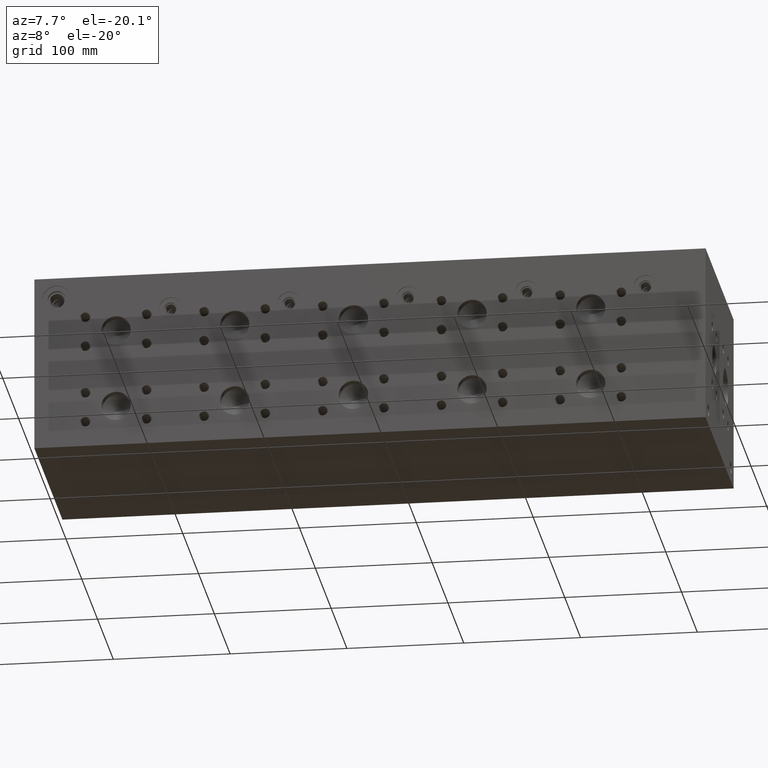
[diagram: clean part render]
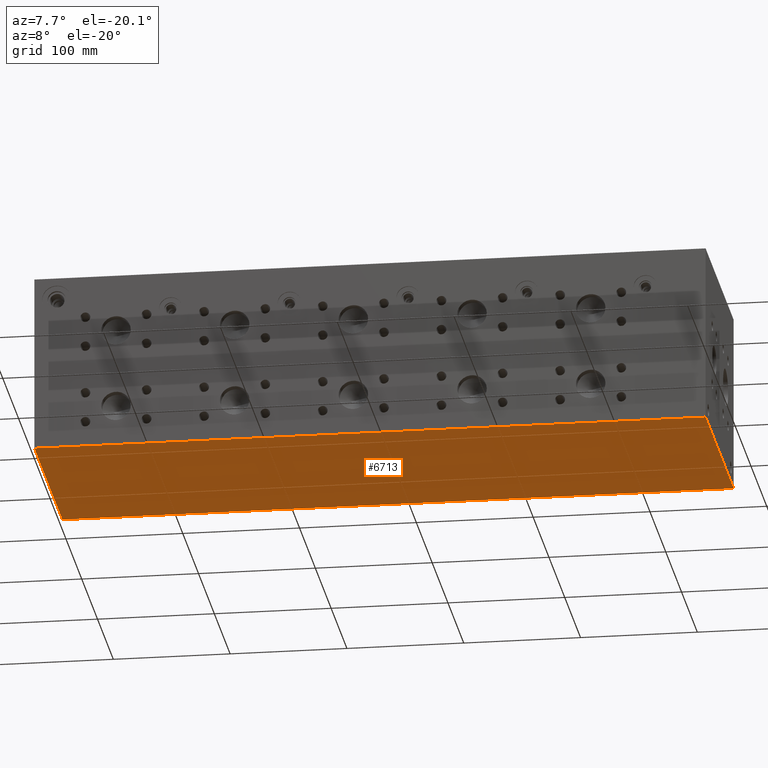
[diagram: same view with one face highlighted and labeled with its STEP entity id]
A machine part, auxiliary view. The second image highlights one B-rep face of the part: STEP entity #6713.
In plain terms, the highlighted planar face has unit normal (0, 0, 1).
Its self-contained STEP definition (entity closure, byte-faithful):
#6353=CARTESIAN_POINT('',(0.0,177.80000000000001,0.0));
#6354=VERTEX_POINT('',#6353);
#6361=CARTESIAN_POINT('',(0.0,0.0,0.0));
#6362=VERTEX_POINT('',#6361);
#6363=CARTESIAN_POINT('',(0.0,177.80000000000001,0.0));
#6364=DIRECTION('',(0.0,-1.0,0.0));
#6365=VECTOR('',#6364,177.80000000000001);
#6366=LINE('',#6363,#6365);
#6367=EDGE_CURVE('',#6354,#6362,#6366,.T.);
#6427=CARTESIAN_POINT('',(574.67499999999995,177.80000000000001,0.0));
#6428=VERTEX_POINT('',#6427);
#6435=CARTESIAN_POINT('',(574.67499999999995,177.80000000000001,0.0));
#6436=DIRECTION('',(-1.0,0.0,0.0));
#6437=VECTOR('',#6436,574.67499999999995);
#6438=LINE('',#6435,#6437);
#6439=EDGE_CURVE('',#6428,#6354,#6438,.T.);
#6458=CARTESIAN_POINT('',(574.67499999999995,0.0,0.0));
#6459=VERTEX_POINT('',#6458);
#6466=CARTESIAN_POINT('',(574.67499999999995,0.0,0.0));
#6467=DIRECTION('',(0.0,1.0,0.0));
#6468=VECTOR('',#6467,177.80000000000001);
#6469=LINE('',#6466,#6468);
#6470=EDGE_CURVE('',#6459,#6428,#6469,.T.);
#6524=CARTESIAN_POINT('',(0.0,0.0,0.0));
#6525=DIRECTION('',(1.0,0.0,0.0));
#6526=VECTOR('',#6525,574.67499999999995);
#6527=LINE('',#6524,#6526);
#6528=EDGE_CURVE('',#6362,#6459,#6527,.T.);
#6702=CARTESIAN_POINT('',(287.33750000000003,88.900000000000006,0.0));
#6703=DIRECTION('',(0.0,0.0,1.0));
#6704=DIRECTION('',(1.0,0.0,0.0));
#6705=AXIS2_PLACEMENT_3D('',#6702,#6703,#6704);
#6706=PLANE('',#6705);
#6707=ORIENTED_EDGE('',*,*,#6528,.F.);
#6708=ORIENTED_EDGE('',*,*,#6367,.F.);
#6709=ORIENTED_EDGE('',*,*,#6439,.F.);
#6710=ORIENTED_EDGE('',*,*,#6470,.F.);
#6711=EDGE_LOOP('',(#6707,#6708,#6709,#6710));
#6712=FACE_OUTER_BOUND('',#6711,.T.);
#6713=ADVANCED_FACE('',(#6712),#6706,.F.);